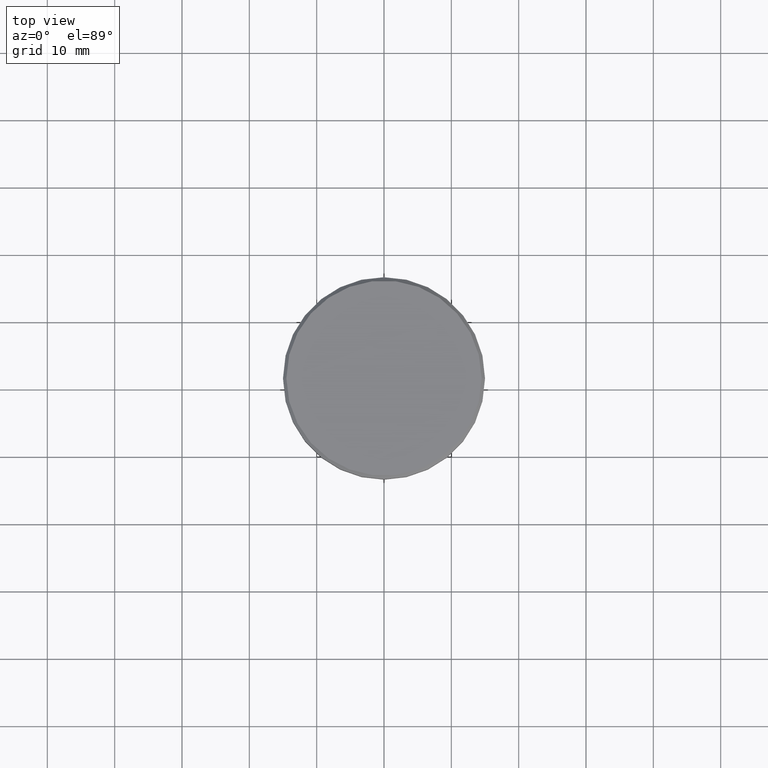
[diagram: clean part render]
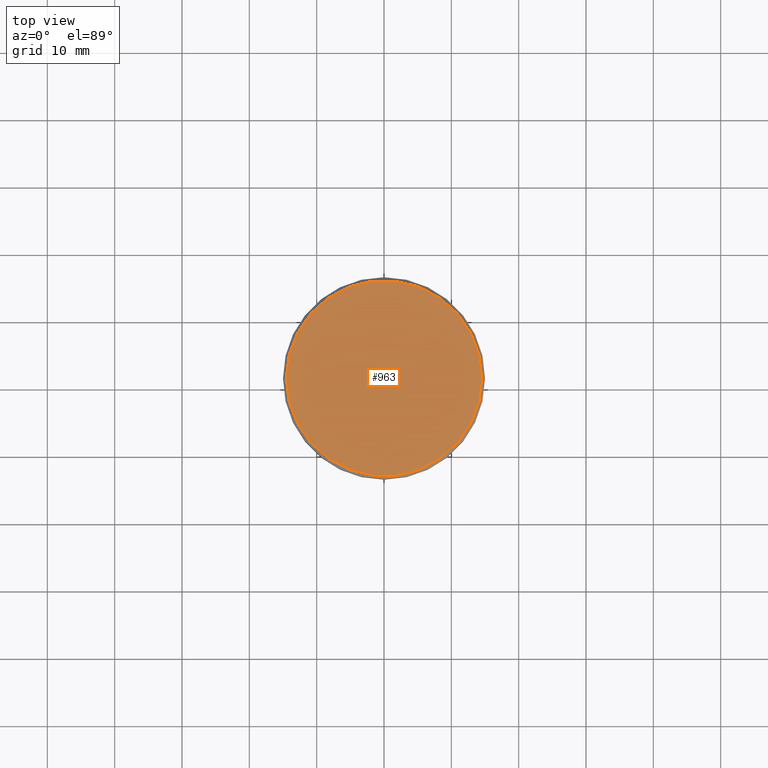
[diagram: same view with one face highlighted and labeled with its STEP entity id]
A machine part, top view. The second image highlights one B-rep face of the part: STEP entity #963.
In plain terms, the highlighted planar face has unit normal (0, -0, 1).
Its self-contained STEP definition (entity closure, byte-faithful):
#167 = CIRCLE ( 'NONE', #546, 14.50000000000001066 ) ;
#197 = CARTESIAN_POINT ( 'NONE',  ( 0.000000000000000000, 0.000000000000000000, 0.000000000000000000 ) ) ;
#217 = DIRECTION ( 'NONE',  ( 1.000000000000000000, 0.000000000000000000, 0.000000000000000000 ) ) ;
#222 = EDGE_CURVE ( 'NONE', #496, #995, #562, .T. ) ;
#241 = EDGE_CURVE ( 'NONE', #995, #496, #167, .T. ) ;
#261 = AXIS2_PLACEMENT_3D ( 'NONE', #403, #917, #217 ) ;
#370 = CARTESIAN_POINT ( 'NONE',  ( -14.50000000000001066, 0.000000000000000000, 0.000000000000000000 ) ) ;
#403 = CARTESIAN_POINT ( 'NONE',  ( 0.000000000000000000, 0.000000000000000000, 0.000000000000000000 ) ) ;
#448 = CARTESIAN_POINT ( 'NONE',  ( 14.50000000000001066, 1.806354028742346591E-15, 0.000000000000000000 ) ) ;
#496 = VERTEX_POINT ( 'NONE', #448 ) ;
#541 = DIRECTION ( 'NONE',  ( -0.000000000000000000, -0.000000000000000000, 1.000000000000000000 ) ) ;
#546 = AXIS2_PLACEMENT_3D ( 'NONE', #705, #541, #551 ) ;
#551 = DIRECTION ( 'NONE',  ( 1.000000000000000000, 0.000000000000000000, 0.000000000000000000 ) ) ;
#554 = DIRECTION ( 'NONE',  ( 1.000000000000000000, 0.000000000000000000, 0.000000000000000000 ) ) ;
#562 = CIRCLE ( 'NONE', #261, 14.50000000000001066 ) ;
#626 = PLANE ( 'NONE',  #756 ) ;
#648 = EDGE_LOOP ( 'NONE', ( #677, #816 ) ) ;
#677 = ORIENTED_EDGE ( 'NONE', *, *, #241, .T. ) ;
#705 = CARTESIAN_POINT ( 'NONE',  ( 0.000000000000000000, 0.000000000000000000, 0.000000000000000000 ) ) ;
#756 = AXIS2_PLACEMENT_3D ( 'NONE', #197, #1016, #554 ) ;
#816 = ORIENTED_EDGE ( 'NONE', *, *, #222, .T. ) ;
#917 = DIRECTION ( 'NONE',  ( -0.000000000000000000, -0.000000000000000000, 1.000000000000000000 ) ) ;
#927 = FACE_OUTER_BOUND ( 'NONE', #648, .T. ) ;
#963 = ADVANCED_FACE ( 'NONE', ( #927 ), #626, .T. ) ;
#995 = VERTEX_POINT ( 'NONE', #370 ) ;
#1016 = DIRECTION ( 'NONE',  ( 0.000000000000000000, -0.000000000000000000, 1.000000000000000000 ) ) ;